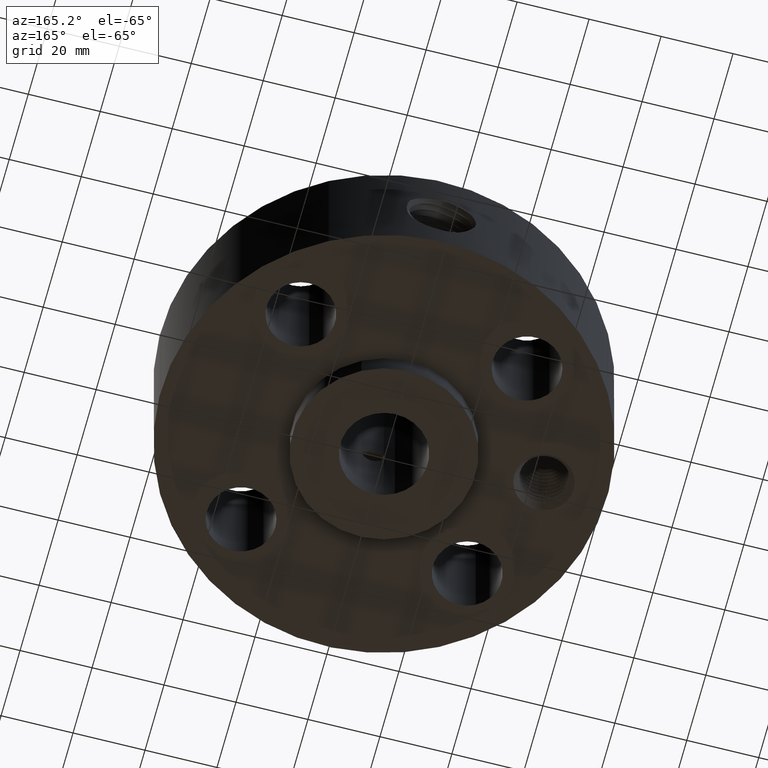
[diagram: clean part render]
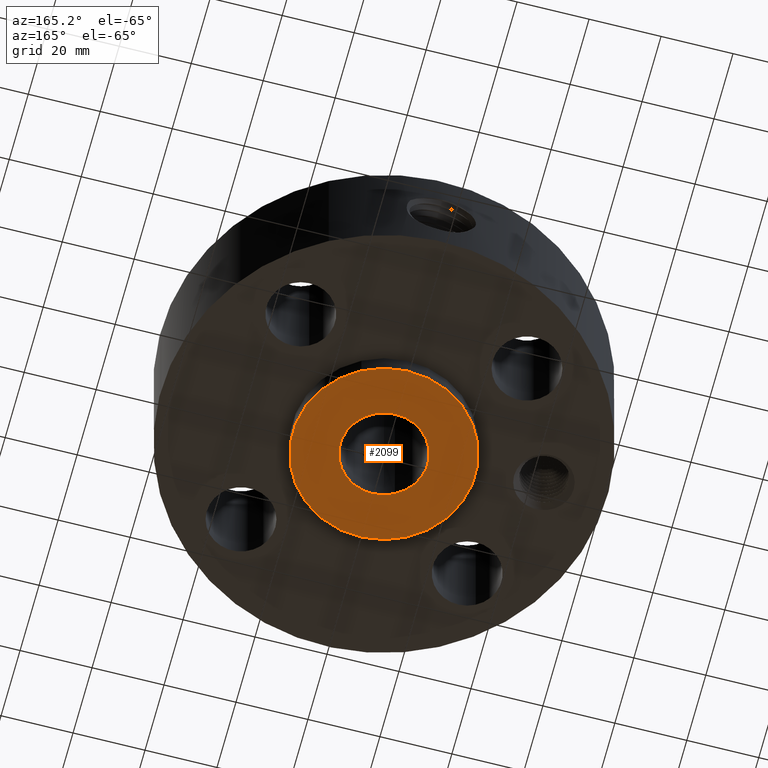
[diagram: same view with one face highlighted and labeled with its STEP entity id]
A machine part, auxiliary view. The second image highlights one B-rep face of the part: STEP entity #2099.
In plain terms, the highlighted planar face has unit normal (0, 0, -1).
Its self-contained STEP definition (entity closure, byte-faithful):
#1127=AXIS2_PLACEMENT_3D('Circle Axis2P3D',#1125,#1126,$) ;
#1153=AXIS2_PLACEMENT_3D('Circle Axis2P3D',#1151,#1152,$) ;
#2075=AXIS2_PLACEMENT_3D('Plane Axis2P3D',#2072,#2073,#2074) ;
#2083=AXIS2_PLACEMENT_3D('Circle Axis2P3D',#2081,#2082,$) ;
#2092=AXIS2_PLACEMENT_3D('Circle Axis2P3D',#2090,#2091,$) ;
#1125=CARTESIAN_POINT('Axis2P3D Location',(0.,0.,0.)) ;
#1129=CARTESIAN_POINT('Vertex',(0.479425538606,0.877582561894,0.)) ;
#1131=CARTESIAN_POINT('Vertex',(-0.479425538606,-0.877582561894,0.)) ;
#1151=CARTESIAN_POINT('Axis2P3D Location',(0.,0.,0.)) ;
#2072=CARTESIAN_POINT('Axis2P3D Location',(0.,0.478500000002,0.)) ;
#2081=CARTESIAN_POINT('Axis2P3D Location',(0.,0.,0.)) ;
#2085=CARTESIAN_POINT('Vertex',(0.229405120223,0.419923255866,-2.79741234551E-015)) ;
#2087=CARTESIAN_POINT('Vertex',(-0.229405120223,-0.419923255866,-2.79741234551E-015)) ;
#2090=CARTESIAN_POINT('Axis2P3D Location',(0.,0.,0.)) ;
#1126=DIRECTION('Axis2P3D Direction',(0.,0.,-0.0393700787402)) ;
#1152=DIRECTION('Axis2P3D Direction',(0.,0.,-0.0393700787402)) ;
#2073=DIRECTION('Axis2P3D Direction',(0.,0.,-0.0393700787402)) ;
#2074=DIRECTION('Axis2P3D XDirection',(0.0393700787402,0.,0.)) ;
#2082=DIRECTION('Axis2P3D Direction',(0.,0.,-0.0393700787402)) ;
#2091=DIRECTION('Axis2P3D Direction',(0.,0.,-0.0393700787402)) ;
#2078=ORIENTED_EDGE('',*,*,#1155,.T.) ;
#2079=ORIENTED_EDGE('',*,*,#1133,.T.) ;
#2096=ORIENTED_EDGE('',*,*,#2089,.F.) ;
#2097=ORIENTED_EDGE('',*,*,#2094,.F.) ;
#2098=FACE_BOUND('',#2095,.T.) ;
#2099=ADVANCED_FACE('PartBody',(#2080,#2098),#2076,.T.) ;
#1128=CIRCLE('generated circle',#1127,1.) ;
#1154=CIRCLE('generated circle',#1153,1.) ;
#2084=CIRCLE('generated circle',#2083,0.478500000002) ;
#2093=CIRCLE('generated circle',#2092,0.478500000002) ;
#1133=EDGE_CURVE('',#1130,#1132,#1128,.T.) ;
#1155=EDGE_CURVE('',#1132,#1130,#1154,.T.) ;
#2089=EDGE_CURVE('',#2086,#2088,#2084,.T.) ;
#2094=EDGE_CURVE('',#2088,#2086,#2093,.T.) ;
#2077=EDGE_LOOP('',(#2078,#2079)) ;
#2095=EDGE_LOOP('',(#2096,#2097)) ;
#2080=FACE_OUTER_BOUND('',#2077,.T.) ;
#2076=PLANE('',#2075) ;
#1130=VERTEX_POINT('',#1129) ;
#1132=VERTEX_POINT('',#1131) ;
#2086=VERTEX_POINT('',#2085) ;
#2088=VERTEX_POINT('',#2087) ;